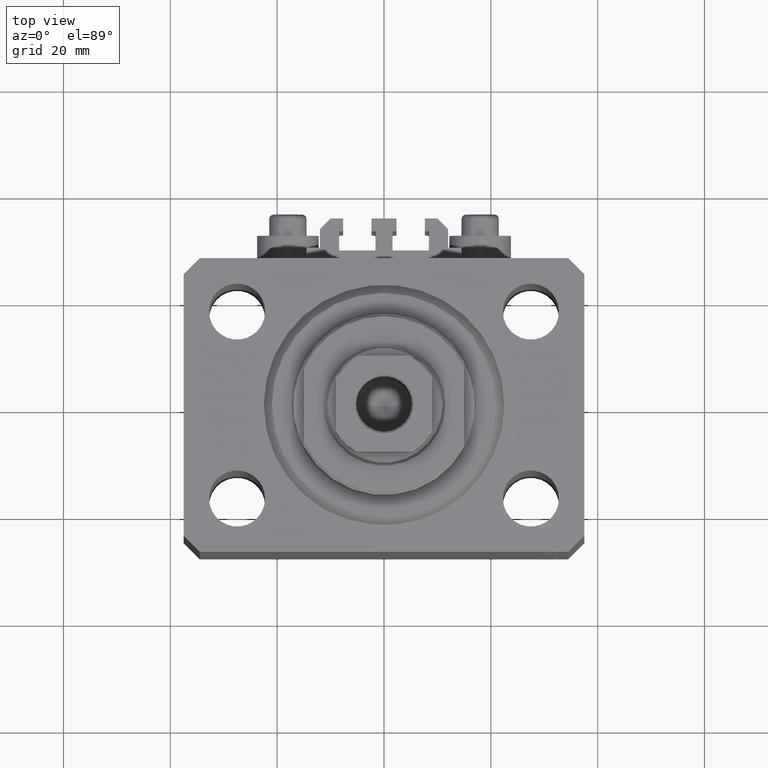
[diagram: clean part render]
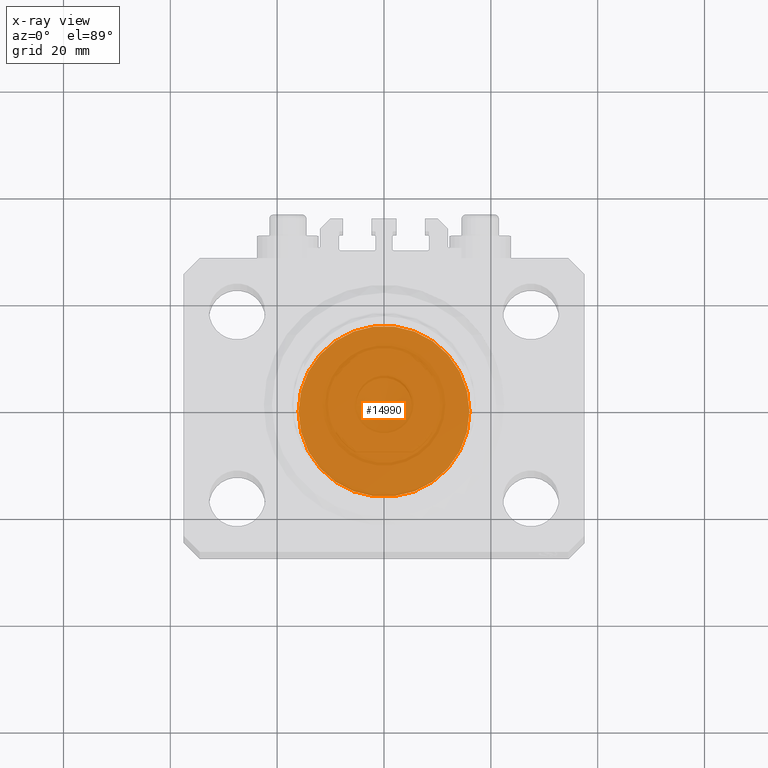
[diagram: x-ray — body ghosted, one internal face saturated and labeled with its STEP entity id]
A machine part, top view, then the same camera in x-ray: the body is ghosted and one INTERNAL B-rep face — a face not visible from any outside direction — is saturated and labeled: STEP entity #14990.
In plain terms, the highlighted planar face has unit normal (0, 0, 1).
Its self-contained STEP definition (entity closure, byte-faithful):
#18 = CIRCLE ( 'NONE', #36756, 16.00000000000000000 ) ;
#1703 = PLANE ( 'NONE',  #17175 ) ;
#3232 = CIRCLE ( 'NONE', #15539, 16.00000000000000000 ) ;
#4185 = EDGE_LOOP ( 'NONE', ( #12821, #37112 ) ) ;
#11403 = DIRECTION ( 'NONE',  ( 1.000000000000000000, 0.000000000000000000, 0.000000000000000000 ) ) ;
#12769 = DIRECTION ( 'NONE',  ( 1.000000000000000000, 0.000000000000000000, -0.000000000000000000 ) ) ;
#12821 = ORIENTED_EDGE ( 'NONE', *, *, #46892, .F. ) ;
#13197 = CARTESIAN_POINT ( 'NONE',  ( -16.00000000000000000, 0.000000000000000000, 0.000000000000000000 ) ) ;
#14990 = ADVANCED_FACE ( 'NONE', ( #30777 ), #1703, .F. ) ;
#15539 = AXIS2_PLACEMENT_3D ( 'NONE', #29263, #40522, #40767 ) ;
#16597 = DIRECTION ( 'NONE',  ( 0.000000000000000000, 0.000000000000000000, 1.000000000000000000 ) ) ;
#17175 = AXIS2_PLACEMENT_3D ( 'NONE', #45399, #16597, #12769 ) ;
#24419 = VERTEX_POINT ( 'NONE', #13197 ) ;
#29263 = CARTESIAN_POINT ( 'NONE',  ( 0.000000000000000000, 0.000000000000000000, 0.000000000000000000 ) ) ;
#30777 = FACE_OUTER_BOUND ( 'NONE', #4185, .T. ) ;
#33237 = CARTESIAN_POINT ( 'NONE',  ( 0.000000000000000000, 0.000000000000000000, 0.000000000000000000 ) ) ;
#33785 = VERTEX_POINT ( 'NONE', #40833 ) ;
#35359 = EDGE_CURVE ( 'NONE', #33785, #24419, #18, .T. ) ;
#36756 = AXIS2_PLACEMENT_3D ( 'NONE', #33237, #40909, #11403 ) ;
#37112 = ORIENTED_EDGE ( 'NONE', *, *, #35359, .F. ) ;
#40522 = DIRECTION ( 'NONE',  ( 0.000000000000000000, 0.000000000000000000, 1.000000000000000000 ) ) ;
#40767 = DIRECTION ( 'NONE',  ( 1.000000000000000000, 0.000000000000000000, 0.000000000000000000 ) ) ;
#40833 = CARTESIAN_POINT ( 'NONE',  ( 16.00000000000000000, 1.959434878635765131E-15, 0.000000000000000000 ) ) ;
#40909 = DIRECTION ( 'NONE',  ( 0.000000000000000000, 0.000000000000000000, 1.000000000000000000 ) ) ;
#45399 = CARTESIAN_POINT ( 'NONE',  ( 0.000000000000000000, 0.000000000000000000, 0.000000000000000000 ) ) ;
#46892 = EDGE_CURVE ( 'NONE', #24419, #33785, #3232, .T. ) ;